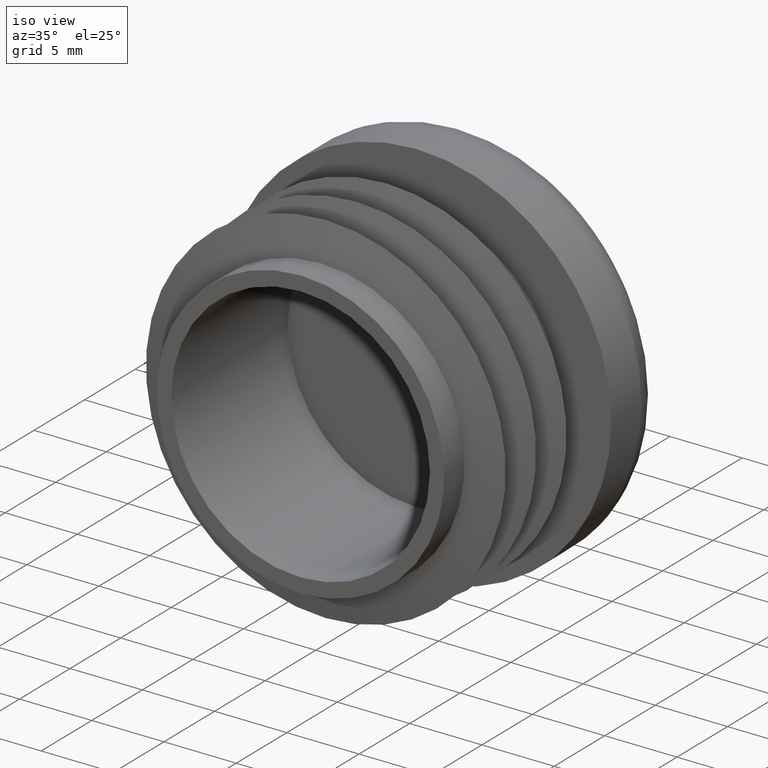
[diagram: clean part render]
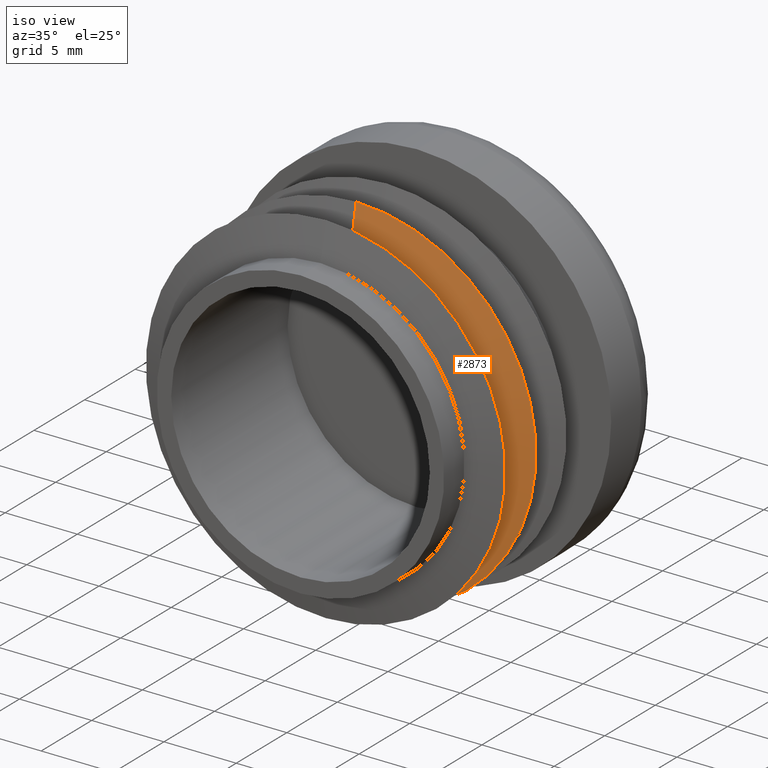
[diagram: same view with one face highlighted and labeled with its STEP entity id]
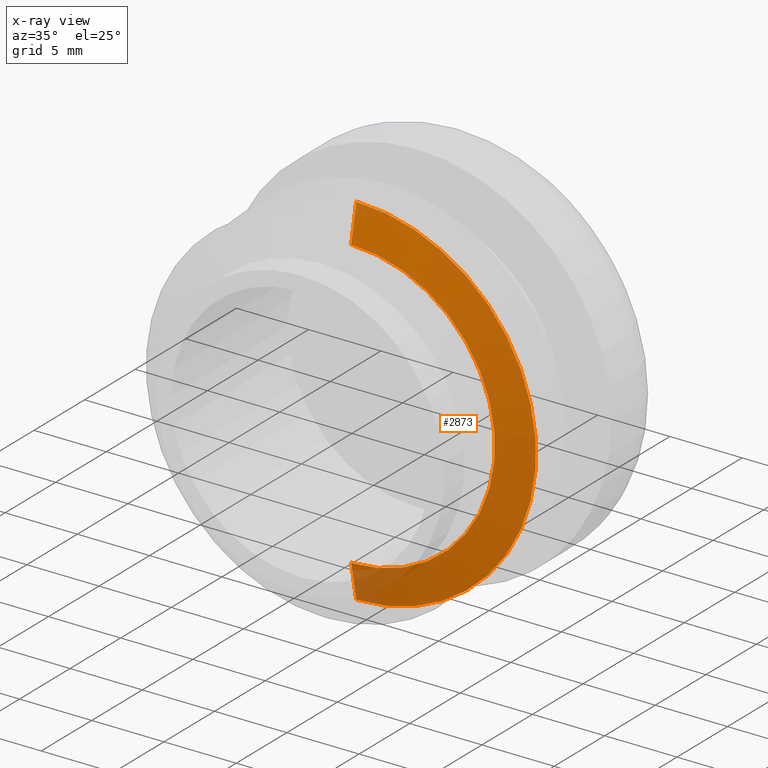
[diagram: x-ray of the same camera — body ghosted, the highlighted face saturated]
A machine part, iso view. The second image highlights one B-rep face of the part: STEP entity #2873.
The next image is the same camera in x-ray: the body ghosted, the highlighted face saturated — about 6% of this face is hidden behind the body in this view.
In plain terms, the highlighted conical surface has half-angle 78.69 deg.
Its self-contained STEP definition (entity closure, byte-faithful):
#2 = DIRECTION ( 'NONE',  ( 0.0000000000000000000, 0.0000000000000000000, 1.000000000000000000 ) ) ;
#12 = DIRECTION ( 'NONE',  ( -0.0000000000000000000, 1.000000000000000000, -0.0000000000000000000 ) ) ;
#23 = CARTESIAN_POINT ( 'NONE',  ( 0.0000000000000000000, -6.000000000000000000, 0.0000000000000000000 ) ) ;
#81 = VERTEX_POINT ( 'NONE', #5447 ) ;
#326 = CARTESIAN_POINT ( 'NONE',  ( 1.218523565151616400E-015, -6.500000000000000900, -9.949999999999999300 ) ) ;
#587 = EDGE_CURVE ( 'NONE', #7113, #4704, #6487, .T. ) ;
#635 = DIRECTION ( 'NONE',  ( 0.0000000000000000000, 0.0000000000000000000, 1.000000000000000000 ) ) ;
#1178 = CARTESIAN_POINT ( 'NONE',  ( 0.0000000000000000000, -6.500000000000000900, 0.0000000000000000000 ) ) ;
#1190 = ORIENTED_EDGE ( 'NONE', *, *, #6997, .F. ) ;
#1521 = ORIENTED_EDGE ( 'NONE', *, *, #2306, .T. ) ;
#1858 = DIRECTION ( 'NONE',  ( 0.0000000000000000000, 0.0000000000000000000, 1.000000000000000000 ) ) ;
#2306 = EDGE_CURVE ( 'NONE', #81, #4909, #6963, .T. ) ;
#2661 = LINE ( 'NONE', #6585, #4247 ) ;
#2873 = ADVANCED_FACE ( 'NONE', ( #4489 ), #4074, .T. ) ;
#3147 = LINE ( 'NONE', #7360, #4935 ) ;
#3423 = CARTESIAN_POINT ( 'NONE',  ( 0.0000000000000000000, -6.500000000000000900, 0.0000000000000000000 ) ) ;
#3673 = ORIENTED_EDGE ( 'NONE', *, *, #587, .F. ) ;
#3739 = AXIS2_PLACEMENT_3D ( 'NONE', #23, #12, #2 ) ;
#4074 = CONICAL_SURFACE ( 'NONE', #5009, 9.949999999999999300, 1.373400766945015400 ) ;
#4247 = VECTOR ( 'NONE', #6066, 1000.000000000000000 ) ;
#4258 = EDGE_CURVE ( 'NONE', #4909, #4704, #3147, .T. ) ;
#4489 = FACE_OUTER_BOUND ( 'NONE', #5228, .T. ) ;
#4568 = ORIENTED_EDGE ( 'NONE', *, *, #4258, .T. ) ;
#4704 = VERTEX_POINT ( 'NONE', #6747 ) ;
#4909 = VERTEX_POINT ( 'NONE', #326 ) ;
#4935 = VECTOR ( 'NONE', #5632, 1000.000000000000000 ) ;
#5009 = AXIS2_PLACEMENT_3D ( 'NONE', #3423, #7790, #635 ) ;
#5228 = EDGE_LOOP ( 'NONE', ( #1521, #4568, #3673, #1190 ) ) ;
#5447 = CARTESIAN_POINT ( 'NONE',  ( 0.0000000000000000000, -6.500000000000000900, 9.949999999999999300 ) ) ;
#5632 = DIRECTION ( 'NONE',  ( 1.200864985790634200E-016, 0.1961161351381844300, -0.9805806756909201100 ) ) ;
#5775 = CARTESIAN_POINT ( 'NONE',  ( 0.0000000000000000000, -6.000000000000000000, 12.44999999999999600 ) ) ;
#5878 = DIRECTION ( 'NONE',  ( -0.0000000000000000000, 1.000000000000000000, -0.0000000000000000000 ) ) ;
#6066 = DIRECTION ( 'NONE',  ( 0.0000000000000000000, 0.1961161351381844300, 0.9805806756909201100 ) ) ;
#6487 = CIRCLE ( 'NONE', #3739, 12.44999999999999900 ) ;
#6585 = CARTESIAN_POINT ( 'NONE',  ( 0.0000000000000000000, -6.500000000000000900, 9.949999999999999300 ) ) ;
#6747 = CARTESIAN_POINT ( 'NONE',  ( 1.524685264938454400E-015, -6.000000000000000000, -12.44999999999999600 ) ) ;
#6963 = CIRCLE ( 'NONE', #7051, 9.949999999999999300 ) ;
#6997 = EDGE_CURVE ( 'NONE', #81, #7113, #2661, .T. ) ;
#7051 = AXIS2_PLACEMENT_3D ( 'NONE', #1178, #5878, #1858 ) ;
#7113 = VERTEX_POINT ( 'NONE', #5775 ) ;
#7360 = CARTESIAN_POINT ( 'NONE',  ( 1.218523565151616400E-015, -6.500000000000000900, -9.949999999999999300 ) ) ;
#7790 = DIRECTION ( 'NONE',  ( -0.0000000000000000000, 1.000000000000000000, -0.0000000000000000000 ) ) ;